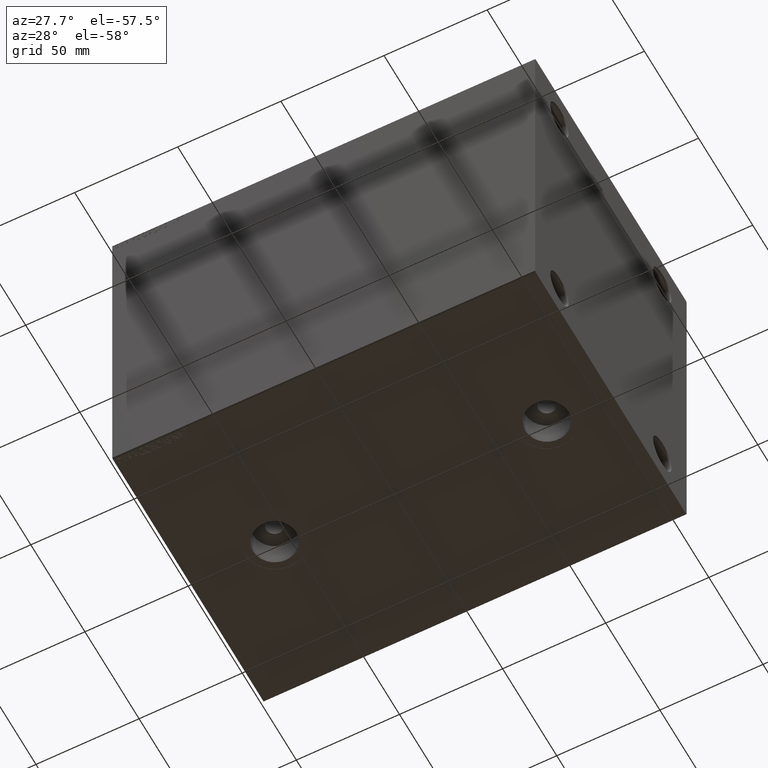
[diagram: clean part render]
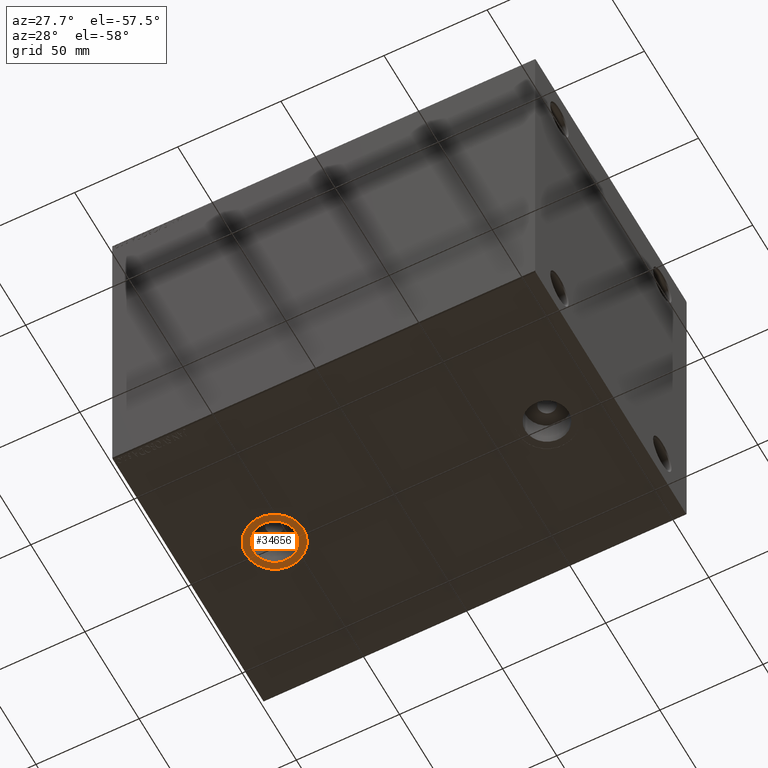
[diagram: same view with one face highlighted and labeled with its STEP entity id]
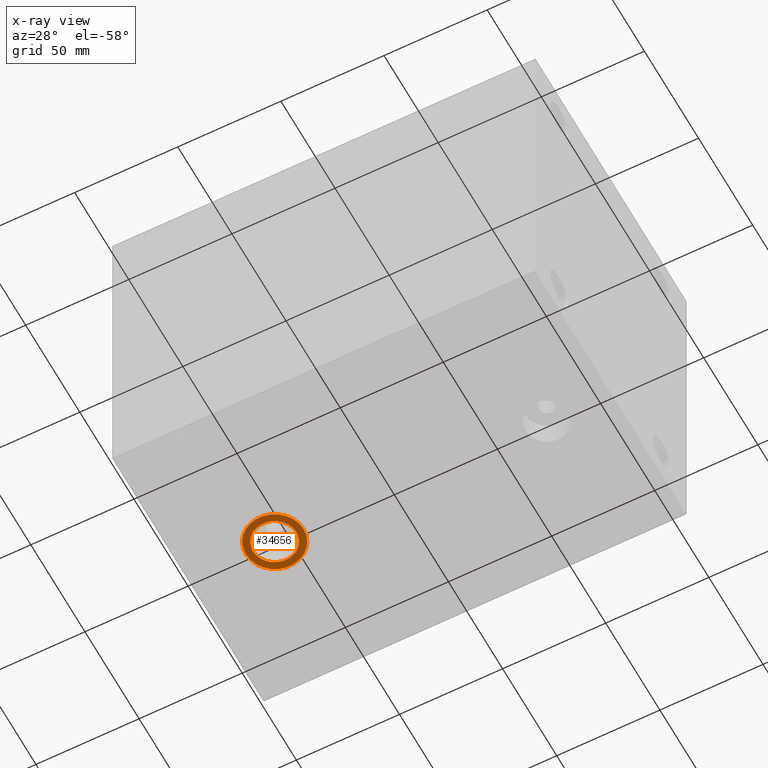
[diagram: x-ray of the same camera — body ghosted, the highlighted face saturated]
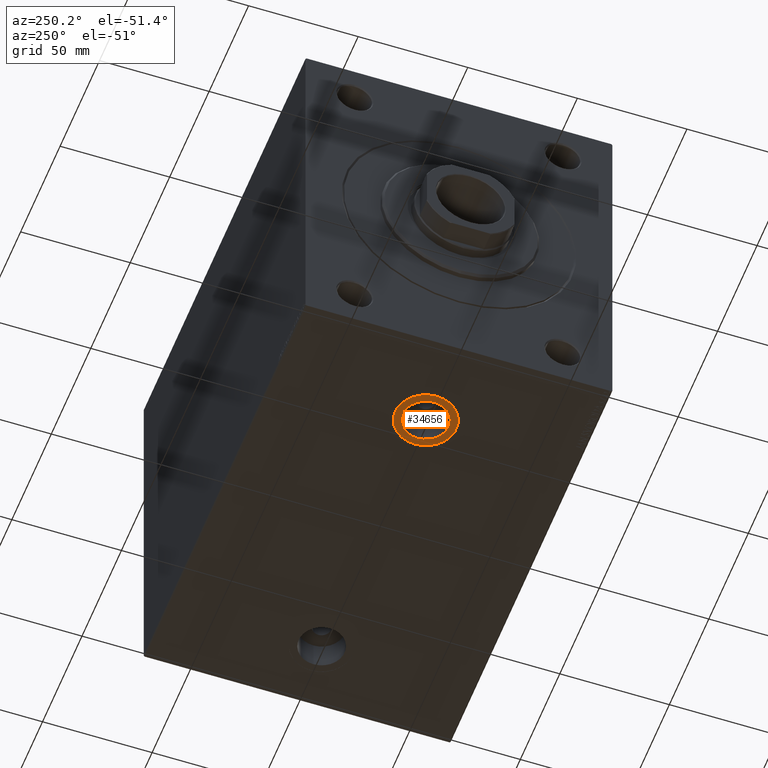
[diagram: same view with one face highlighted and labeled with its STEP entity id]
A machine part, auxiliary view. The second image highlights one B-rep face of the part: STEP entity #34656.
The next image is the same camera in x-ray: the body ghosted, the highlighted face saturated — about 0% of this face is hidden behind the body in this view.
A second angle (auxiliary view) of the same face is appended — the face is thin or edge-on in the first view.
In plain terms, the highlighted planar face has unit normal (0, 0, -1).
Its self-contained STEP definition (entity closure, byte-faithful):
#959 = AXIS2_PLACEMENT_3D ( 'NONE', #8566, #15943, #39979 ) ;
#3655 = DIRECTION ( 'NONE',  ( -1.000000000000000000, 0.000000000000000000, -0.000000000000000000 ) ) ;
#4393 = ORIENTED_EDGE ( 'NONE', *, *, #12087, .T. ) ;
#4711 = EDGE_CURVE ( 'NONE', #15691, #32297, #13431, .T. ) ;
#7234 = AXIS2_PLACEMENT_3D ( 'NONE', #43445, #25405, #11560 ) ;
#8173 = CARTESIAN_POINT ( 'NONE',  ( 31.52000000000000668, -5.359976829575725911E-15, -84.90000000000000568 ) ) ;
#8566 = CARTESIAN_POINT ( 'NONE',  ( 42.00000000000000000, -5.359976829575725911E-15, -84.90000000000000568 ) ) ;
#10356 = PLANE ( 'NONE',  #27748 ) ;
#10578 = FACE_BOUND ( 'NONE', #38535, .T. ) ;
#11560 = DIRECTION ( 'NONE',  ( -1.000000000000000000, 0.000000000000000000, 0.000000000000000000 ) ) ;
#12087 = EDGE_CURVE ( 'NONE', #26053, #41487, #20853, .T. ) ;
#13431 = CIRCLE ( 'NONE', #14148, 10.47999999999999687 ) ;
#14148 = AXIS2_PLACEMENT_3D ( 'NONE', #39444, #24637, #17724 ) ;
#15691 = VERTEX_POINT ( 'NONE', #8173 ) ;
#15943 = DIRECTION ( 'NONE',  ( 0.000000000000000000, 0.000000000000000000, -1.000000000000000000 ) ) ;
#16583 = ORIENTED_EDGE ( 'NONE', *, *, #4711, .F. ) ;
#17724 = DIRECTION ( 'NONE',  ( -1.000000000000000000, 0.000000000000000000, 0.000000000000000000 ) ) ;
#20457 = CARTESIAN_POINT ( 'NONE',  ( 28.00000000000000355, -5.359976829575725911E-15, -84.90000000000000568 ) ) ;
#20853 = CIRCLE ( 'NONE', #959, 13.99999999999999822 ) ;
#24255 = ORIENTED_EDGE ( 'NONE', *, *, #37680, .T. ) ;
#24424 = CARTESIAN_POINT ( 'NONE',  ( 0.000000000000000000, 0.000000000000000000, -84.90000000000000568 ) ) ;
#24637 = DIRECTION ( 'NONE',  ( 0.000000000000000000, 0.000000000000000000, -1.000000000000000000 ) ) ;
#24656 = CARTESIAN_POINT ( 'NONE',  ( 56.00000000000000711, -3.645471310769431470E-15, -84.90000000000000568 ) ) ;
#25405 = DIRECTION ( 'NONE',  ( 0.000000000000000000, 0.000000000000000000, -1.000000000000000000 ) ) ;
#26053 = VERTEX_POINT ( 'NONE', #24656 ) ;
#26653 = DIRECTION ( 'NONE',  ( -1.000000000000000000, 0.000000000000000000, 0.000000000000000000 ) ) ;
#27748 = AXIS2_PLACEMENT_3D ( 'NONE', #24424, #35319, #3655 ) ;
#30087 = CIRCLE ( 'NONE', #7234, 10.47999999999999687 ) ;
#32297 = VERTEX_POINT ( 'NONE', #43948 ) ;
#34079 = DIRECTION ( 'NONE',  ( 0.000000000000000000, 0.000000000000000000, -1.000000000000000000 ) ) ;
#34656 = ADVANCED_FACE ( 'NONE', ( #10578, #42014 ), #10356, .T. ) ;
#35319 = DIRECTION ( 'NONE',  ( 0.000000000000000000, 0.000000000000000000, -1.000000000000000000 ) ) ;
#37225 = ORIENTED_EDGE ( 'NONE', *, *, #43151, .F. ) ;
#37680 = EDGE_CURVE ( 'NONE', #41487, #26053, #44717, .T. ) ;
#38535 = EDGE_LOOP ( 'NONE', ( #16583, #37225 ) ) ;
#39444 = CARTESIAN_POINT ( 'NONE',  ( 42.00000000000000000, -5.359976829575725911E-15, -84.90000000000000568 ) ) ;
#39979 = DIRECTION ( 'NONE',  ( -1.000000000000000000, 0.000000000000000000, 0.000000000000000000 ) ) ;
#41487 = VERTEX_POINT ( 'NONE', #20457 ) ;
#42014 = FACE_OUTER_BOUND ( 'NONE', #43914, .T. ) ;
#43151 = EDGE_CURVE ( 'NONE', #32297, #15691, #30087, .T. ) ;
#43445 = CARTESIAN_POINT ( 'NONE',  ( 42.00000000000000000, -5.359976829575725911E-15, -84.90000000000000568 ) ) ;
#43914 = EDGE_LOOP ( 'NONE', ( #24255, #4393 ) ) ;
#43948 = CARTESIAN_POINT ( 'NONE',  ( 52.47999999999999687, -4.076546984069300422E-15, -84.90000000000000568 ) ) ;
#44012 = CARTESIAN_POINT ( 'NONE',  ( 42.00000000000000000, -5.359976829575725911E-15, -84.90000000000000568 ) ) ;
#44679 = AXIS2_PLACEMENT_3D ( 'NONE', #44012, #34079, #26653 ) ;
#44717 = CIRCLE ( 'NONE', #44679, 13.99999999999999822 ) ;